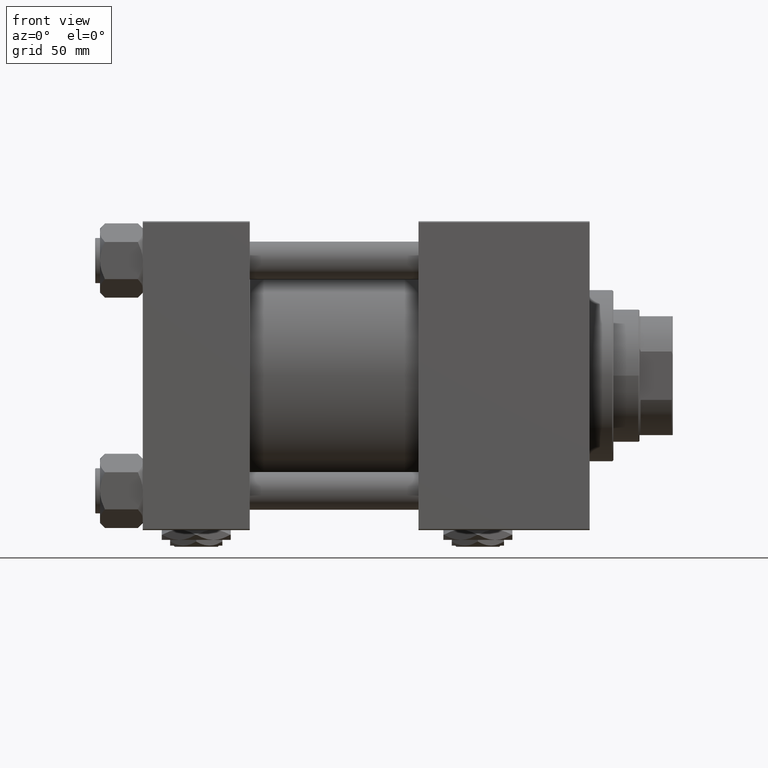
[diagram: clean part render]
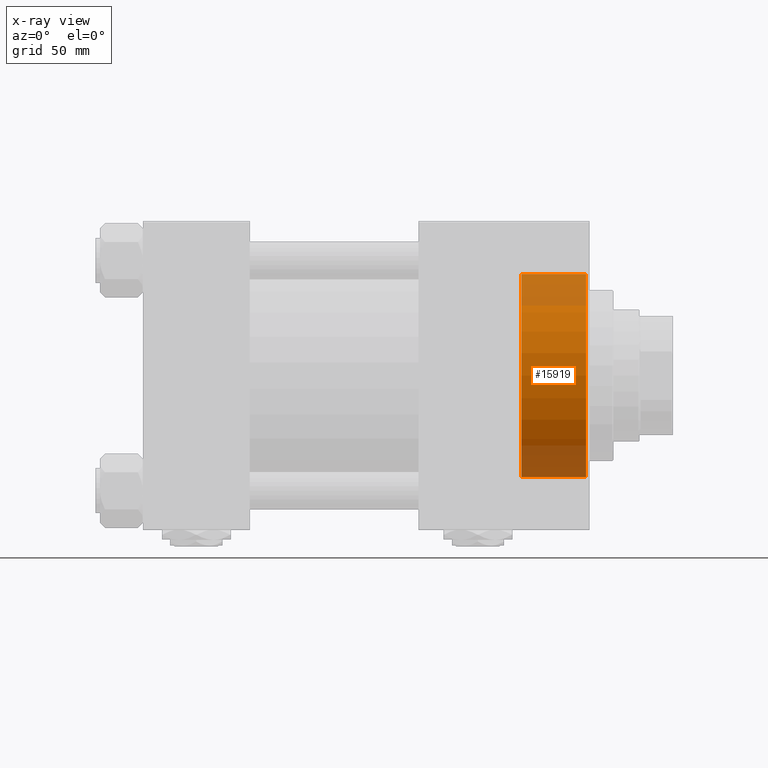
[diagram: x-ray — body ghosted, one internal face saturated and labeled with its STEP entity id]
A machine part, front view, then the same camera in x-ray: the body is ghosted and one INTERNAL B-rep face — a face not visible from any outside direction — is saturated and labeled: STEP entity #15919.
In plain terms, the highlighted cylindrical surface (partial cylindrical patch) has radius 42.75 mm, axis along (1, 0, 0).
Its self-contained STEP definition (entity closure, byte-faithful):
#1629 = FACE_OUTER_BOUND ( 'NONE', #6344, .T. ) ;
#1899 = CARTESIAN_POINT ( 'NONE',  ( 159.3000000000000114, 0.000000000000000000, -42.75000000000000000 ) ) ;
#2419 = CYLINDRICAL_SURFACE ( 'NONE', #41562, 42.75000000000000000 ) ;
#2772 = EDGE_CURVE ( 'NONE', #38449, #19878, #11302, .T. ) ;
#4393 = LINE ( 'NONE', #12658, #32126 ) ;
#6344 = EDGE_LOOP ( 'NONE', ( #15823, #8873, #44776, #50534 ) ) ;
#7397 = CARTESIAN_POINT ( 'NONE',  ( 159.3000000000000114, 0.000000000000000000, -42.75000000000000000 ) ) ;
#7860 = CARTESIAN_POINT ( 'NONE',  ( 159.3000000000000114, 0.000000000000000000, 0.000000000000000000 ) ) ;
#8530 = VERTEX_POINT ( 'NONE', #29016 ) ;
#8873 = ORIENTED_EDGE ( 'NONE', *, *, #25005, .T. ) ;
#9875 = VERTEX_POINT ( 'NONE', #46044 ) ;
#11302 = CIRCLE ( 'NONE', #29211, 42.75000000000000000 ) ;
#12116 = DIRECTION ( 'NONE',  ( 1.000000000000000000, 0.000000000000000000, 0.000000000000000000 ) ) ;
#12655 = EDGE_CURVE ( 'NONE', #9875, #8530, #27773, .T. ) ;
#12658 = CARTESIAN_POINT ( 'NONE',  ( 159.3000000000000114, 5.235365066354935472E-15, 42.75000000000000000 ) ) ;
#13131 = LINE ( 'NONE', #1899, #34213 ) ;
#14638 = DIRECTION ( 'NONE',  ( 1.000000000000000000, 0.000000000000000000, 0.000000000000000000 ) ) ;
#15823 = ORIENTED_EDGE ( 'NONE', *, *, #2772, .F. ) ;
#15919 = ADVANCED_FACE ( 'NONE', ( #1629 ), #2419, .F. ) ;
#17912 = DIRECTION ( 'NONE',  ( 0.000000000000000000, 0.000000000000000000, -1.000000000000000000 ) ) ;
#18186 = DIRECTION ( 'NONE',  ( 1.000000000000000000, -0.000000000000000000, -0.000000000000000000 ) ) ;
#19878 = VERTEX_POINT ( 'NONE', #7397 ) ;
#21190 = DIRECTION ( 'NONE',  ( 1.000000000000000000, -0.000000000000000000, -0.000000000000000000 ) ) ;
#22652 = DIRECTION ( 'NONE',  ( 0.000000000000000000, 0.000000000000000000, 1.000000000000000000 ) ) ;
#22717 = DIRECTION ( 'NONE',  ( 1.000000000000000000, -0.000000000000000000, -0.000000000000000000 ) ) ;
#25005 = EDGE_CURVE ( 'NONE', #38449, #9875, #4393, .T. ) ;
#27773 = CIRCLE ( 'NONE', #43981, 42.75000000000000000 ) ;
#29016 = CARTESIAN_POINT ( 'NONE',  ( 186.5000000000000284, 0.000000000000000000, -42.75000000000000000 ) ) ;
#29211 = AXIS2_PLACEMENT_3D ( 'NONE', #7860, #12116, #42994 ) ;
#32126 = VECTOR ( 'NONE', #21190, 1000.000000000000000 ) ;
#32217 = CARTESIAN_POINT ( 'NONE',  ( 186.5000000000000284, 0.000000000000000000, 0.000000000000000000 ) ) ;
#34213 = VECTOR ( 'NONE', #18186, 1000.000000000000000 ) ;
#38449 = VERTEX_POINT ( 'NONE', #41722 ) ;
#39439 = EDGE_CURVE ( 'NONE', #19878, #8530, #13131, .T. ) ;
#41562 = AXIS2_PLACEMENT_3D ( 'NONE', #46777, #22717, #17912 ) ;
#41722 = CARTESIAN_POINT ( 'NONE',  ( 159.3000000000000114, 5.235365066354935472E-15, 42.75000000000000000 ) ) ;
#42994 = DIRECTION ( 'NONE',  ( 0.000000000000000000, 0.000000000000000000, -1.000000000000000000 ) ) ;
#43981 = AXIS2_PLACEMENT_3D ( 'NONE', #32217, #14638, #22652 ) ;
#44776 = ORIENTED_EDGE ( 'NONE', *, *, #12655, .T. ) ;
#46044 = CARTESIAN_POINT ( 'NONE',  ( 186.5000000000000284, 5.235365066354935472E-15, 42.75000000000000000 ) ) ;
#46777 = CARTESIAN_POINT ( 'NONE',  ( 159.3000000000000114, 0.000000000000000000, 0.000000000000000000 ) ) ;
#50534 = ORIENTED_EDGE ( 'NONE', *, *, #39439, .F. ) ;